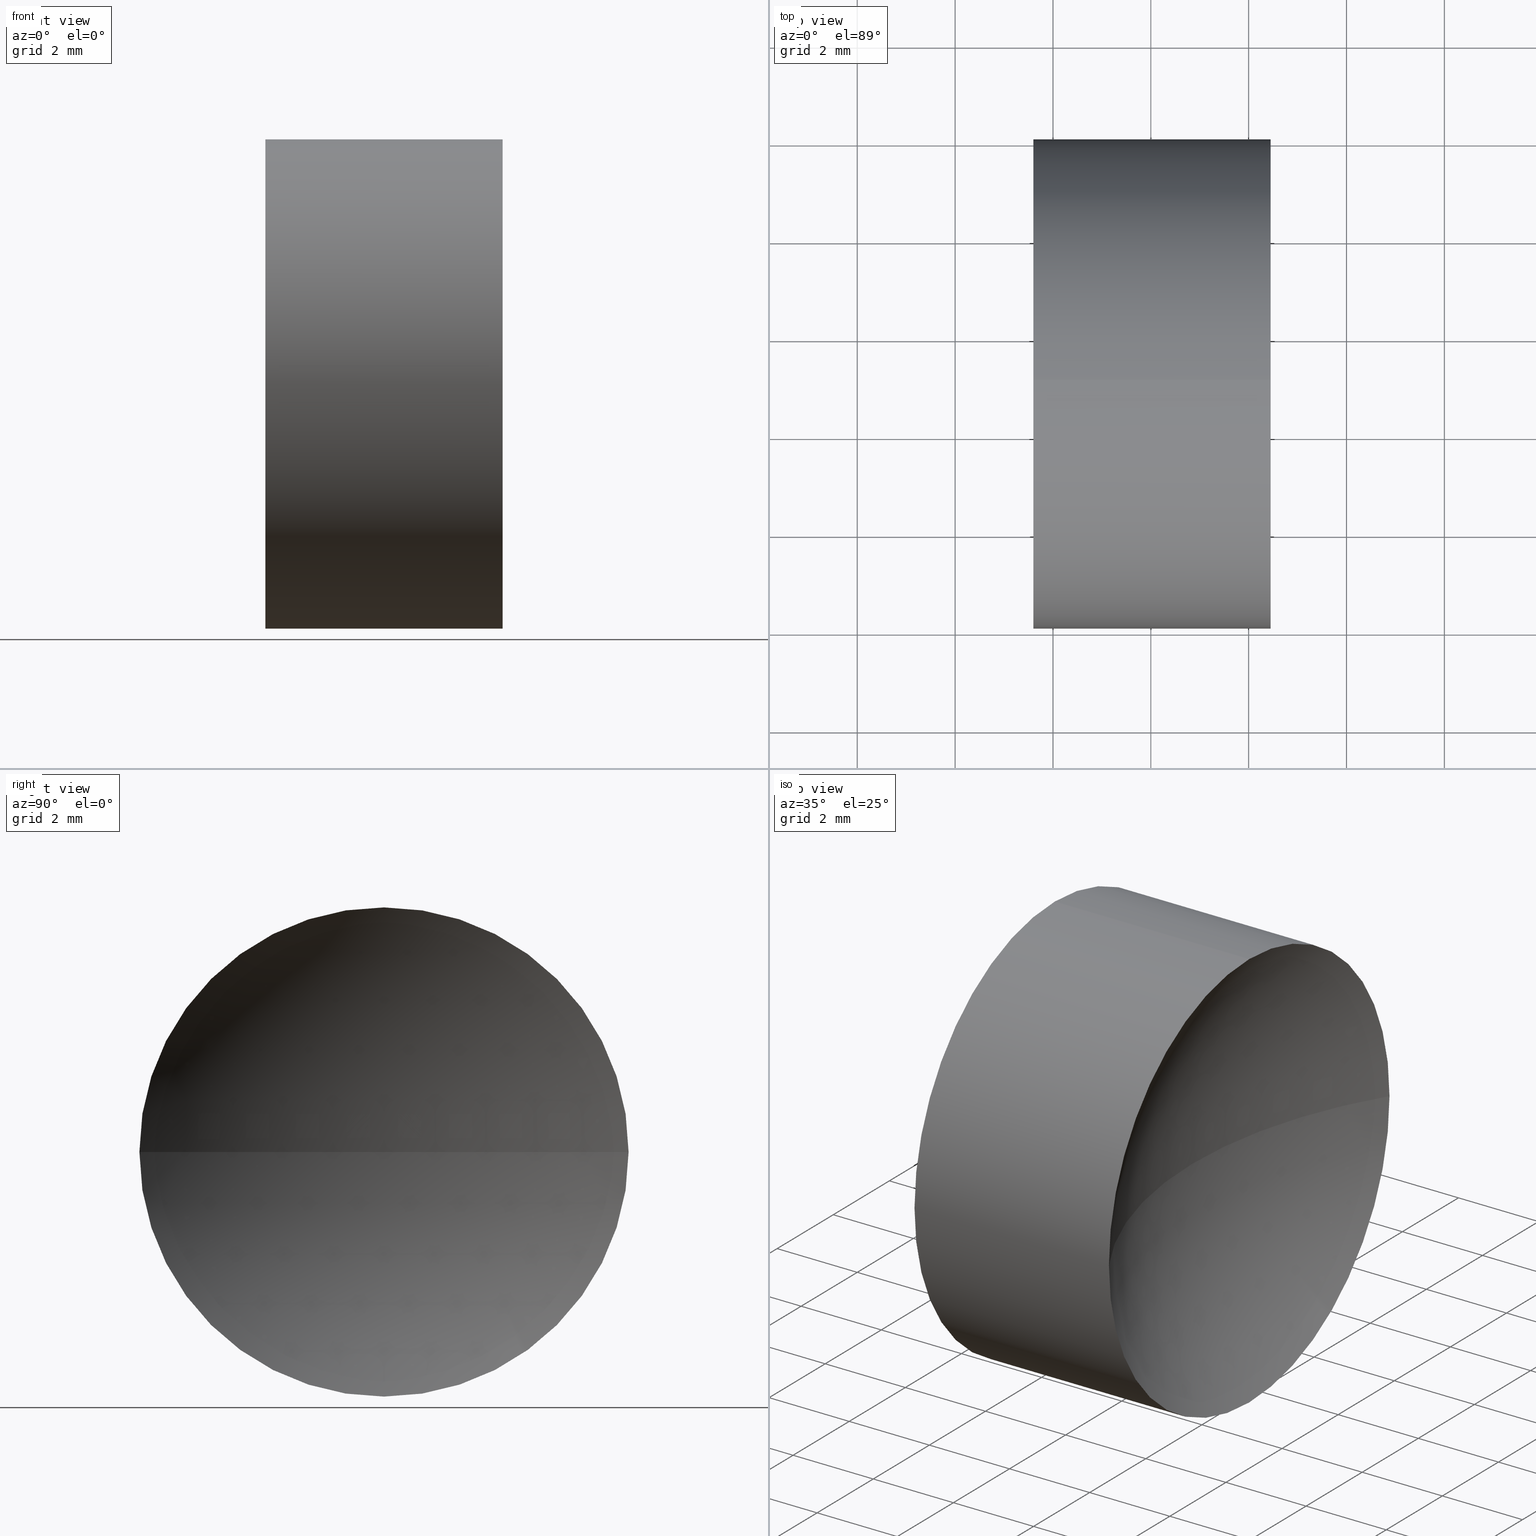
[diagram: canonical four-view strip — front | top / right | iso, engineering-drawing reading convention]
A machine part, canonical four-view strip (front | top / right | iso — engineering-drawing reading convention). The complete STEP part file that produces these views, byte-faithful:
ISO-10303-21;
HEADER;
FILE_DESCRIPTION (( 'STEP AP214' ),
    '1' );
FILE_NAME ('130053.STEP',
    '2019-07-02T03:12:15',
    ( '' ),
    ( '' ),
    'SwSTEP 2.0',
    'SolidWorks 2016',
    '' );
FILE_SCHEMA (( 'AUTOMOTIVE_DESIGN' ));
ENDSEC;

DATA;
#1 = CYLINDRICAL_SURFACE ( 'NONE', #169, 4.999999999999999100 ) ;
#2 = ORIENTED_EDGE ( 'NONE', *, *, #209, .F. ) ;
#3 = EDGE_CURVE ( 'NONE', #64, #111, #188, .T. ) ;
#4 = PRODUCT_DEFINITION ( 'δ֪', '', #116, #152 ) ;
#5 = CIRCLE ( 'NONE', #32, 9.479999999999995100 ) ;
#6 = CARTESIAN_POINT ( 'NONE',  ( 21.59847265101309000, 13.04452057459747900, 0.0000000000000000000 ) ) ;
#7 = CIRCLE ( 'NONE', #78, 4.999999999999999100 ) ;
#8 = UNCERTAINTY_MEASURE_WITH_UNIT (LENGTH_MEASURE( 1.000000000000000100E-005 ), #113, 'distance_accuracy_value', 'NONE');
#9 = ORIENTED_EDGE ( 'NONE', *, *, #220, .F. ) ;
#10 = CARTESIAN_POINT ( 'NONE',  ( 26.45004007673697900, 13.04452057459747900, 0.0000000000000000000 ) ) ;
#11 = ADVANCED_FACE ( 'NONE', ( #66 ), #110, .F. ) ;
#12 = SURFACE_STYLE_FILL_AREA ( #92 ) ;
#13 = DIRECTION ( 'NONE',  ( 0.0000000000000000000, 1.000000000000000000, 1.224646799147353200E-016 ) ) ;
#14 = EDGE_CURVE ( 'NONE', #136, #126, #7, .T. ) ;
#15 = ADVANCED_FACE ( 'NONE', ( #24 ), #198, .F. ) ;
#16 = CIRCLE ( 'NONE', #41, 9.479999999999995100 ) ;
#17 = DIRECTION ( 'NONE',  ( -1.000000000000000000, -0.0000000000000000000, -0.0000000000000000000 ) ) ;
#18 = EDGE_LOOP ( 'NONE', ( #181, #93, #229, #40 ) ) ;
#19 = CARTESIAN_POINT ( 'NONE',  ( 21.59847265101309000, 13.04452057459747900, 4.999999999999999100 ) ) ;
#20 = APPLICATION_PROTOCOL_DEFINITION ( 'draft international standard', 'automotive_design', 1998, #107 ) ;
#21 = EDGE_CURVE ( 'NONE', #210, #39, #149, .T. ) ;
#22 = AXIS2_PLACEMENT_3D ( 'NONE', #87, #67, #156 ) ;
#23 = EDGE_LOOP ( 'NONE', ( #191, #62, #157, #150, #82, #183 ) ) ;
#24 = FACE_OUTER_BOUND ( 'NONE', #43, .T. ) ;
#25 = AXIS2_PLACEMENT_3D ( 'NONE', #219, #222, #85 ) ;
#26 = VERTEX_POINT ( 'NONE', #84 ) ;
#27 =( NAMED_UNIT ( * ) PLANE_ANGLE_UNIT ( ) SI_UNIT ( $, .RADIAN. ) );
#28 = CARTESIAN_POINT ( 'NONE',  ( 26.45004007673697900, 13.04452057459747900, -4.999999999999999100 ) ) ;
#29 = DIRECTION ( 'NONE',  ( 0.0000000000000000000, 1.000000000000000000, 0.0000000000000000000 ) ) ;
#30 =( LENGTH_UNIT ( ) NAMED_UNIT ( * ) SI_UNIT ( .MILLI., .METRE. ) );
#31 = AXIS2_PLACEMENT_3D ( 'NONE', #10, #135, #100 ) ;
#32 = AXIS2_PLACEMENT_3D ( 'NONE', #162, #105, #164 ) ;
#33 = DIRECTION ( 'NONE',  ( 0.0000000000000000000, 0.0000000000000000000, 1.000000000000000000 ) ) ;
#34 =( NAMED_UNIT ( * ) SI_UNIT ( $, .STERADIAN. ) SOLID_ANGLE_UNIT ( ) );
#35 = ORIENTED_EDGE ( 'NONE', *, *, #21, .T. ) ;
#36 = AXIS2_PLACEMENT_3D ( 'NONE', #142, #128, #160 ) ;
#37 = UNCERTAINTY_MEASURE_WITH_UNIT (LENGTH_MEASURE( 1.000000000000000100E-005 ), #69, 'distance_accuracy_value', 'NONE');
#38 = CIRCLE ( 'NONE', #104, 9.480000000000002200 ) ;
#39 = VERTEX_POINT ( 'NONE', #194 ) ;
#40 = ORIENTED_EDGE ( 'NONE', *, *, #202, .T. ) ;
#41 = AXIS2_PLACEMENT_3D ( 'NONE', #161, #108, #13 ) ;
#42 = DIRECTION ( 'NONE',  ( -1.000000000000000000, -0.0000000000000000000, -0.0000000000000000000 ) ) ;
#43 = EDGE_LOOP ( 'NONE', ( #199, #226, #102, #151 ) ) ;
#44 = CIRCLE ( 'NONE', #57, 9.480000000000000400 ) ;
#45 = CARTESIAN_POINT ( 'NONE',  ( 26.45004007673697900, 8.044520574597477500, -6.123233995736767300E-016 ) ) ;
#46 = AXIS2_PLACEMENT_3D ( 'NONE', #211, #225, #109 ) ;
#47 = DIRECTION ( 'NONE',  ( -1.000000000000000000, -0.0000000000000000000, -0.0000000000000000000 ) ) ;
#48 = EDGE_LOOP ( 'NONE', ( #103, #168, #2, #133, #192, #115 ) ) ;
#49 = FACE_OUTER_BOUND ( 'NONE', #23, .T. ) ;
#50 = DIRECTION ( 'NONE',  ( 0.0000000000000000000, 0.0000000000000000000, 1.000000000000000000 ) ) ;
#51 = DIRECTION ( 'NONE',  ( 0.0000000000000000000, 0.0000000000000000000, 1.000000000000000000 ) ) ;
#52 = CARTESIAN_POINT ( 'NONE',  ( 13.54425636387503000, 13.04452057459747700, 0.0000000000000000000 ) ) ;
#53 = DIRECTION ( 'NONE',  ( 1.000000000000000000, 0.0000000000000000000, 0.0000000000000000000 ) ) ;
#54 = ADVANCED_BREP_SHAPE_REPRESENTATION ( '130053', ( #77, #221 ), #130 ) ;
#55 = FACE_OUTER_BOUND ( 'NONE', #48, .T. ) ;
#56 = VERTEX_POINT ( 'NONE', #173 ) ;
#57 = AXIS2_PLACEMENT_3D ( 'NONE', #52, #33, #176 ) ;
#58 = PRESENTATION_STYLE_ASSIGNMENT (( #232 ) ) ;
#59 = LINE ( 'NONE', #125, #201 ) ;
#60 = ORIENTED_EDGE ( 'NONE', *, *, #202, .F. ) ;
#61 = MECHANICAL_DESIGN_GEOMETRIC_PRESENTATION_REPRESENTATION (  '', ( #119 ), #75 ) ;
#62 = ORIENTED_EDGE ( 'NONE', *, *, #14, .T. ) ;
#63 = DIRECTION ( 'NONE',  ( -1.000000000000000000, -0.0000000000000000000, -0.0000000000000000000 ) ) ;
#64 = VERTEX_POINT ( 'NONE', #218 ) ;
#65 = DIRECTION ( 'NONE',  ( 0.0000000000000000000, 1.000000000000000000, 0.0000000000000000000 ) ) ;
#66 = FACE_OUTER_BOUND ( 'NONE', #147, .T. ) ;
#67 = DIRECTION ( 'NONE',  ( 0.0000000000000000000, 0.0000000000000000000, -1.000000000000000000 ) ) ;
#68 = AXIS2_PLACEMENT_3D ( 'NONE', #155, #88, #171 ) ;
#69 =( LENGTH_UNIT ( ) NAMED_UNIT ( * ) SI_UNIT ( .MILLI., .METRE. ) );
#70 = CARTESIAN_POINT ( 'NONE',  ( 26.45004007673697900, 13.04452057459747900, 0.0000000000000000000 ) ) ;
#71 = DIRECTION ( 'NONE',  ( -1.000000000000000000, -0.0000000000000000000, -0.0000000000000000000 ) ) ;
#72 = DIRECTION ( 'NONE',  ( 0.0000000000000000000, 0.0000000000000000000, 1.000000000000000000 ) ) ;
#73 = SHAPE_DEFINITION_REPRESENTATION ( #80, #54 ) ;
#74 = DIRECTION ( 'NONE',  ( 0.0000000000000000000, 0.0000000000000000000, 1.000000000000000000 ) ) ;
#75 =( GEOMETRIC_REPRESENTATION_CONTEXT ( 3 ) GLOBAL_UNCERTAINTY_ASSIGNED_CONTEXT ( ( #182 ) ) GLOBAL_UNIT_ASSIGNED_CONTEXT ( ( #30, #27, #205 ) ) REPRESENTATION_CONTEXT ( 'NONE', 'WORKASPACE' ) );
#76 = ORIENTED_EDGE ( 'NONE', *, *, #167, .T. ) ;
#77 = MANIFOLD_SOLID_BREP ( '��ת1', #170 ) ;
#78 = AXIS2_PLACEMENT_3D ( 'NONE', #174, #47, #122 ) ;
#79 = PRESENTATION_LAYER_ASSIGNMENT (  '', '', ( #153 ) ) ;
#80 = PRODUCT_DEFINITION_SHAPE ( 'NONE', 'NONE',  #4 ) ;
#81 = FACE_OUTER_BOUND ( 'NONE', #179, .T. ) ;
#82 = ORIENTED_EDGE ( 'NONE', *, *, #190, .F. ) ;
#83 = DIRECTION ( 'NONE',  ( 0.0000000000000000000, 0.0000000000000000000, -1.000000000000000000 ) ) ;
#84 = CARTESIAN_POINT ( 'NONE',  ( 23.02425636387502900, 13.04452057459747700, 0.0000000000000000000 ) ) ;
#85 = DIRECTION ( 'NONE',  ( 0.0000000000000000000, 1.000000000000000000, 0.0000000000000000000 ) ) ;
#86 = AXIS2_PLACEMENT_3D ( 'NONE', #172, #204, #65 ) ;
#87 = CARTESIAN_POINT ( 'NONE',  ( 34.50425636387502900, 13.04452057459747700, 0.0000000000000000000 ) ) ;
#88 = DIRECTION ( 'NONE',  ( -1.000000000000000000, -0.0000000000000000000, -0.0000000000000000000 ) ) ;
#89 = CIRCLE ( 'NONE', #146, 4.999999999999999100 ) ;
#90 = DIRECTION ( 'NONE',  ( -1.000000000000000000, -0.0000000000000000000, -0.0000000000000000000 ) ) ;
#91 = VERTEX_POINT ( 'NONE', #137 ) ;
#92 = FILL_AREA_STYLE ('',( #143 ) ) ;
#93 = ORIENTED_EDGE ( 'NONE', *, *, #14, .F. ) ;
#94 = AXIS2_PLACEMENT_3D ( 'NONE', #120, #83, #29 ) ;
#95 =( GEOMETRIC_REPRESENTATION_CONTEXT ( 3 ) GLOBAL_UNCERTAINTY_ASSIGNED_CONTEXT ( ( #8 ) ) GLOBAL_UNIT_ASSIGNED_CONTEXT ( ( #113, #166, #200 ) ) REPRESENTATION_CONTEXT ( 'NONE', 'WORKASPACE' ) );
#96 = APPLICATION_PROTOCOL_DEFINITION ( 'draft international standard', 'automotive_design', 1998, #144 ) ;
#97 = ORIENTED_EDGE ( 'NONE', *, *, #145, .F. ) ;
#98 = VECTOR ( 'NONE', #17, 1000.000000000000000 ) ;
#99 = CARTESIAN_POINT ( 'NONE',  ( 21.59847265101309000, 8.044520574597479300, -6.123233995736765300E-016 ) ) ;
#100 = DIRECTION ( 'NONE',  ( 0.0000000000000000000, 0.0000000000000000000, 1.000000000000000000 ) ) ;
#101 = COLOUR_RGB ( '',1.000000000000000000, 1.000000000000000000, 1.000000000000000000 ) ;
#102 = ORIENTED_EDGE ( 'NONE', *, *, #209, .T. ) ;
#103 = ORIENTED_EDGE ( 'NONE', *, *, #215, .T. ) ;
#104 = AXIS2_PLACEMENT_3D ( 'NONE', #196, #197, #127 ) ;
#105 = DIRECTION ( 'NONE',  ( 0.0000000000000000000, 0.0000000000000000000, 1.000000000000000000 ) ) ;
#106 = ADVANCED_FACE ( 'NONE', ( #49 ), #224, .T. ) ;
#107 = APPLICATION_CONTEXT ( 'automotive_design' ) ;
#108 = DIRECTION ( 'NONE',  ( 0.0000000000000000000, 1.224646799147353200E-016, -1.000000000000000000 ) ) ;
#109 = DIRECTION ( 'NONE',  ( 0.0000000000000000000, 0.0000000000000000000, 1.000000000000000000 ) ) ;
#110 = SPHERICAL_SURFACE ( 'NONE', #94, 9.480000000000000400 ) ;
#111 = VERTEX_POINT ( 'NONE', #189 ) ;
#112 = VERTEX_POINT ( 'NONE', #99 ) ;
#113 =( LENGTH_UNIT ( ) NAMED_UNIT ( * ) SI_UNIT ( .MILLI., .METRE. ) );
#114 = COLOUR_RGB ( '',1.000000000000000000, 1.000000000000000000, 1.000000000000000000 ) ;
#115 = ORIENTED_EDGE ( 'NONE', *, *, #3, .T. ) ;
#116 = PRODUCT_DEFINITION_FORMATION_WITH_SPECIFIED_SOURCE ( '�κ�', '', #216, .NOT_KNOWN. ) ;
#117 = FILL_AREA_STYLE_COLOUR ( '', #101 ) ;
#118 = FILL_AREA_STYLE ('',( #117 ) ) ;
#119 = STYLED_ITEM ( 'NONE', ( #165 ), #77 ) ;
#120 = CARTESIAN_POINT ( 'NONE',  ( 13.54425636387503000, 13.04452057459747700, 0.0000000000000000000 ) ) ;
#121 = ADVANCED_FACE ( 'NONE', ( #81 ), #132, .F. ) ;
#122 = DIRECTION ( 'NONE',  ( 0.0000000000000000000, 0.0000000000000000000, 1.000000000000000000 ) ) ;
#123 =( NAMED_UNIT ( * ) PLANE_ANGLE_UNIT ( ) SI_UNIT ( $, .RADIAN. ) );
#124 = ADVANCED_FACE ( 'NONE', ( #184 ), #230, .F. ) ;
#125 = CARTESIAN_POINT ( 'NONE',  ( 21.22493055706841100, 13.04452057459747900, 4.999999999999999100 ) ) ;
#126 = VERTEX_POINT ( 'NONE', #45 ) ;
#127 = DIRECTION ( 'NONE',  ( 0.0000000000000000000, 1.000000000000000000, 1.224646799147353000E-016 ) ) ;
#128 = DIRECTION ( 'NONE',  ( -1.000000000000000000, -0.0000000000000000000, -0.0000000000000000000 ) ) ;
#129 = DIRECTION ( 'NONE',  ( -1.000000000000000000, -0.0000000000000000000, -0.0000000000000000000 ) ) ;
#130 =( GEOMETRIC_REPRESENTATION_CONTEXT ( 3 ) GLOBAL_UNCERTAINTY_ASSIGNED_CONTEXT ( ( #37 ) ) GLOBAL_UNIT_ASSIGNED_CONTEXT ( ( #69, #123, #34 ) ) REPRESENTATION_CONTEXT ( 'NONE', 'WORKASPACE' ) );
#131 = PRESENTATION_LAYER_ASSIGNMENT (  '', '', ( #119 ) ) ;
#132 = SPHERICAL_SURFACE ( 'NONE', #22, 9.479999999999995100 ) ;
#133 = ORIENTED_EDGE ( 'NONE', *, *, #21, .F. ) ;
#134 = SURFACE_SIDE_STYLE ('',( #206 ) ) ;
#135 = DIRECTION ( 'NONE',  ( -1.000000000000000000, -0.0000000000000000000, -0.0000000000000000000 ) ) ;
#136 = VERTEX_POINT ( 'NONE', #28 ) ;
#137 = CARTESIAN_POINT ( 'NONE',  ( 21.59847265101309000, 13.04452057459747900, -4.999999999999999100 ) ) ;
#138 = ADVANCED_FACE ( 'NONE', ( #55 ), #1, .T. ) ;
#139 = PRODUCT_RELATED_PRODUCT_CATEGORY ( 'part', '', ( #216 ) ) ;
#140 = CARTESIAN_POINT ( 'NONE',  ( 0.0000000000000000000, 0.0000000000000000000, 0.0000000000000000000 ) ) ;
#141 = CIRCLE ( 'NONE', #159, 4.999999999999999100 ) ;
#142 = CARTESIAN_POINT ( 'NONE',  ( 21.59847265101309000, 13.04452057459747900, 0.0000000000000000000 ) ) ;
#143 = FILL_AREA_STYLE_COLOUR ( '', #114 ) ;
#144 = APPLICATION_CONTEXT ( 'automotive_design' ) ;
#145 = EDGE_CURVE ( 'NONE', #126, #64, #89, .T. ) ;
#146 = AXIS2_PLACEMENT_3D ( 'NONE', #227, #90, #50 ) ;
#147 = EDGE_LOOP ( 'NONE', ( #9, #163, #217, #35 ) ) ;
#148 = CIRCLE ( 'NONE', #46, 4.999999999999999100 ) ;
#149 = CIRCLE ( 'NONE', #180, 4.999999999999999100 ) ;
#150 = ORIENTED_EDGE ( 'NONE', *, *, #185, .T. ) ;
#151 = ORIENTED_EDGE ( 'NONE', *, *, #231, .T. ) ;
#152 = PRODUCT_DEFINITION_CONTEXT ( 'detailed design', #144, 'design' ) ;
#153 = STYLED_ITEM ( 'NONE', ( #58 ), #54 ) ;
#154 = CIRCLE ( 'NONE', #36, 4.999999999999999100 ) ;
#155 = CARTESIAN_POINT ( 'NONE',  ( 21.22493055706841100, 13.04452057459747900, 0.0000000000000000000 ) ) ;
#156 = DIRECTION ( 'NONE',  ( 0.0000000000000000000, 1.000000000000000000, 0.0000000000000000000 ) ) ;
#157 = ORIENTED_EDGE ( 'NONE', *, *, #145, .T. ) ;
#158 = EDGE_CURVE ( 'NONE', #26, #112, #38, .T. ) ;
#159 = AXIS2_PLACEMENT_3D ( 'NONE', #208, #178, #223 ) ;
#160 = DIRECTION ( 'NONE',  ( 0.0000000000000000000, 0.0000000000000000000, 1.000000000000000000 ) ) ;
#161 = CARTESIAN_POINT ( 'NONE',  ( 34.50425636387502900, 13.04452057459747700, 0.0000000000000000000 ) ) ;
#162 = CARTESIAN_POINT ( 'NONE',  ( 34.50425636387502900, 13.04452057459747700, 0.0000000000000000000 ) ) ;
#163 = ORIENTED_EDGE ( 'NONE', *, *, #158, .T. ) ;
#164 = DIRECTION ( 'NONE',  ( 1.000000000000000000, 0.0000000000000000000, 0.0000000000000000000 ) ) ;
#165 = PRESENTATION_STYLE_ASSIGNMENT (( #175 ) ) ;
#166 =( NAMED_UNIT ( * ) PLANE_ANGLE_UNIT ( ) SI_UNIT ( $, .RADIAN. ) );
#167 = EDGE_CURVE ( 'NONE', #126, #56, #16, .T. ) ;
#168 = ORIENTED_EDGE ( 'NONE', *, *, #177, .T. ) ;
#169 = AXIS2_PLACEMENT_3D ( 'NONE', #207, #42, #51 ) ;
#170 = CLOSED_SHELL ( 'NONE', ( #138, #121, #11, #15, #124, #106 ) ) ;
#171 = DIRECTION ( 'NONE',  ( 0.0000000000000000000, 0.0000000000000000000, 1.000000000000000000 ) ) ;
#172 = CARTESIAN_POINT ( 'NONE',  ( 13.54425636387503000, 13.04452057459747700, 0.0000000000000000000 ) ) ;
#173 = CARTESIAN_POINT ( 'NONE',  ( 25.02425636387503600, 13.04452057459747700, 0.0000000000000000000 ) ) ;
#174 = CARTESIAN_POINT ( 'NONE',  ( 26.45004007673697900, 13.04452057459747900, 0.0000000000000000000 ) ) ;
#175 = SURFACE_STYLE_USAGE ( .BOTH. , #134 ) ;
#176 = DIRECTION ( 'NONE',  ( 1.000000000000000000, 0.0000000000000000000, 0.0000000000000000000 ) ) ;
#177 = EDGE_CURVE ( 'NONE', #136, #91, #186, .T. ) ;
#178 = DIRECTION ( 'NONE',  ( -1.000000000000000000, -0.0000000000000000000, -0.0000000000000000000 ) ) ;
#179 = EDGE_LOOP ( 'NONE', ( #97, #76, #60, #228 ) ) ;
#180 = AXIS2_PLACEMENT_3D ( 'NONE', #6, #63, #187 ) ;
#181 = ORIENTED_EDGE ( 'NONE', *, *, #167, .F. ) ;
#182 = UNCERTAINTY_MEASURE_WITH_UNIT (LENGTH_MEASURE( 1.000000000000000100E-005 ), #30, 'distance_accuracy_value', 'NONE');
#183 = ORIENTED_EDGE ( 'NONE', *, *, #231, .F. ) ;
#184 = FACE_OUTER_BOUND ( 'NONE', #18, .T. ) ;
#185 = EDGE_CURVE ( 'NONE', #64, #210, #59, .T. ) ;
#186 = LINE ( 'NONE', #212, #98 ) ;
#187 = DIRECTION ( 'NONE',  ( 0.0000000000000000000, 0.0000000000000000000, 1.000000000000000000 ) ) ;
#188 = CIRCLE ( 'NONE', #31, 4.999999999999999100 ) ;
#189 = CARTESIAN_POINT ( 'NONE',  ( 26.45004007673697900, 18.04452057459748100, 0.0000000000000000000 ) ) ;
#190 = EDGE_CURVE ( 'NONE', #112, #210, #154, .T. ) ;
#191 = ORIENTED_EDGE ( 'NONE', *, *, #177, .F. ) ;
#192 = ORIENTED_EDGE ( 'NONE', *, *, #185, .F. ) ;
#193 = AXIS2_PLACEMENT_3D ( 'NONE', #70, #129, #72 ) ;
#194 = CARTESIAN_POINT ( 'NONE',  ( 21.59847265101309000, 18.04452057459747700, 0.0000000000000000000 ) ) ;
#195 = CIRCLE ( 'NONE', #193, 4.999999999999999100 ) ;
#196 = CARTESIAN_POINT ( 'NONE',  ( 13.54425636387503000, 13.04452057459747700, 0.0000000000000000000 ) ) ;
#197 = DIRECTION ( 'NONE',  ( 0.0000000000000000000, 1.224646799147353200E-016, -1.000000000000000000 ) ) ;
#198 = SPHERICAL_SURFACE ( 'NONE', #86, 9.480000000000000400 ) ;
#199 = ORIENTED_EDGE ( 'NONE', *, *, #158, .F. ) ;
#200 =( NAMED_UNIT ( * ) SI_UNIT ( $, .STERADIAN. ) SOLID_ANGLE_UNIT ( ) );
#201 = VECTOR ( 'NONE', #71, 1000.000000000000000 ) ;
#202 = EDGE_CURVE ( 'NONE', #111, #56, #5, .T. ) ;
#203 = MECHANICAL_DESIGN_GEOMETRIC_PRESENTATION_REPRESENTATION (  '', ( #153 ), #95 ) ;
#204 = DIRECTION ( 'NONE',  ( 0.0000000000000000000, 0.0000000000000000000, -1.000000000000000000 ) ) ;
#205 =( NAMED_UNIT ( * ) SI_UNIT ( $, .STERADIAN. ) SOLID_ANGLE_UNIT ( ) );
#206 = SURFACE_STYLE_FILL_AREA ( #118 ) ;
#207 = CARTESIAN_POINT ( 'NONE',  ( 21.22493055706841100, 13.04452057459747900, 0.0000000000000000000 ) ) ;
#208 = CARTESIAN_POINT ( 'NONE',  ( 21.59847265101309000, 13.04452057459747900, 0.0000000000000000000 ) ) ;
#209 = EDGE_CURVE ( 'NONE', #39, #91, #148, .T. ) ;
#210 = VERTEX_POINT ( 'NONE', #19 ) ;
#211 = CARTESIAN_POINT ( 'NONE',  ( 21.59847265101309000, 13.04452057459747900, 0.0000000000000000000 ) ) ;
#212 = CARTESIAN_POINT ( 'NONE',  ( 21.22493055706841100, 13.04452057459747900, -4.999999999999999100 ) ) ;
#213 = PRODUCT_CONTEXT ( 'NONE', #107, 'mechanical' ) ;
#214 = SURFACE_SIDE_STYLE ('',( #12 ) ) ;
#215 = EDGE_CURVE ( 'NONE', #111, #136, #195, .T. ) ;
#216 = PRODUCT ( '130053', '130053', '', ( #213 ) ) ;
#217 = ORIENTED_EDGE ( 'NONE', *, *, #190, .T. ) ;
#218 = CARTESIAN_POINT ( 'NONE',  ( 26.45004007673697900, 13.04452057459747900, 4.999999999999999100 ) ) ;
#219 = CARTESIAN_POINT ( 'NONE',  ( 34.50425636387502900, 13.04452057459747700, 0.0000000000000000000 ) ) ;
#220 = EDGE_CURVE ( 'NONE', #26, #39, #44, .T. ) ;
#221 = AXIS2_PLACEMENT_3D ( 'NONE', #140, #74, #53 ) ;
#222 = DIRECTION ( 'NONE',  ( 0.0000000000000000000, 0.0000000000000000000, -1.000000000000000000 ) ) ;
#223 = DIRECTION ( 'NONE',  ( 0.0000000000000000000, 0.0000000000000000000, 1.000000000000000000 ) ) ;
#224 = CYLINDRICAL_SURFACE ( 'NONE', #68, 4.999999999999999100 ) ;
#225 = DIRECTION ( 'NONE',  ( -1.000000000000000000, -0.0000000000000000000, -0.0000000000000000000 ) ) ;
#226 = ORIENTED_EDGE ( 'NONE', *, *, #220, .T. ) ;
#227 = CARTESIAN_POINT ( 'NONE',  ( 26.45004007673697900, 13.04452057459747900, 0.0000000000000000000 ) ) ;
#228 = ORIENTED_EDGE ( 'NONE', *, *, #3, .F. ) ;
#229 = ORIENTED_EDGE ( 'NONE', *, *, #215, .F. ) ;
#230 = SPHERICAL_SURFACE ( 'NONE', #25, 9.479999999999995100 ) ;
#231 = EDGE_CURVE ( 'NONE', #91, #112, #141, .T. ) ;
#232 = SURFACE_STYLE_USAGE ( .BOTH. , #214 ) ;
ENDSEC;
END-ISO-10303-21;
